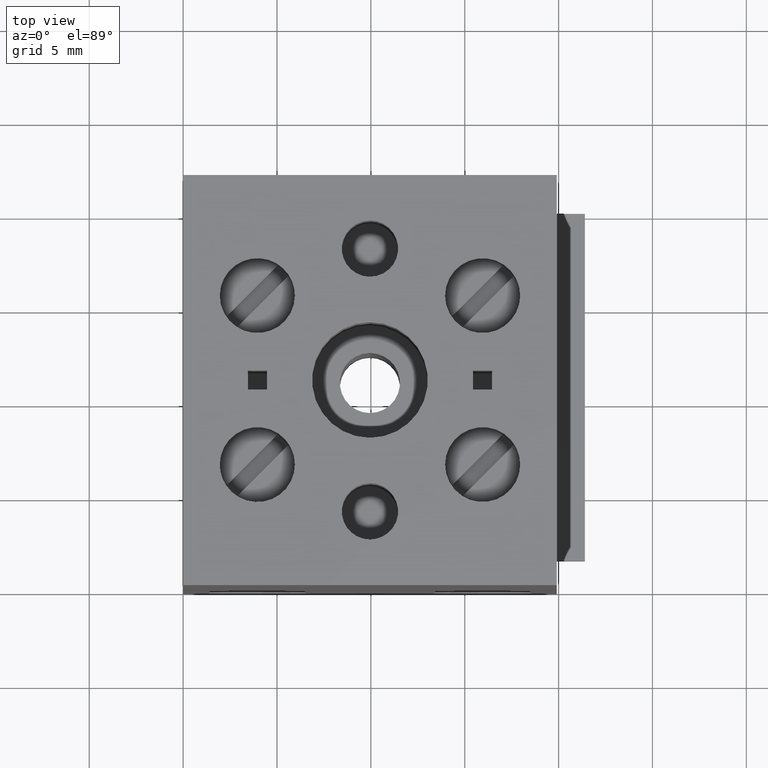
[diagram: clean part render]
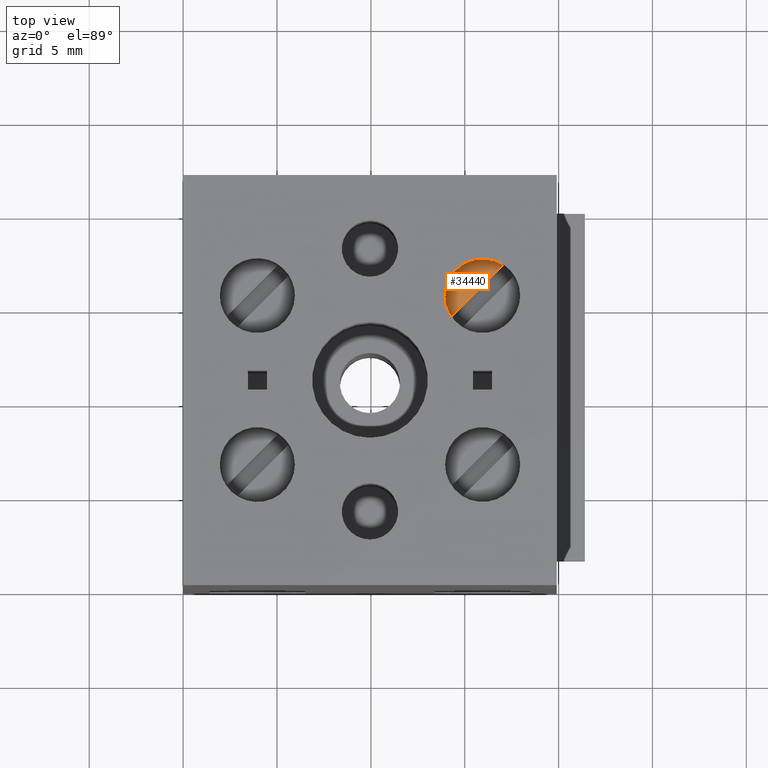
[diagram: same view with one face highlighted and labeled with its STEP entity id]
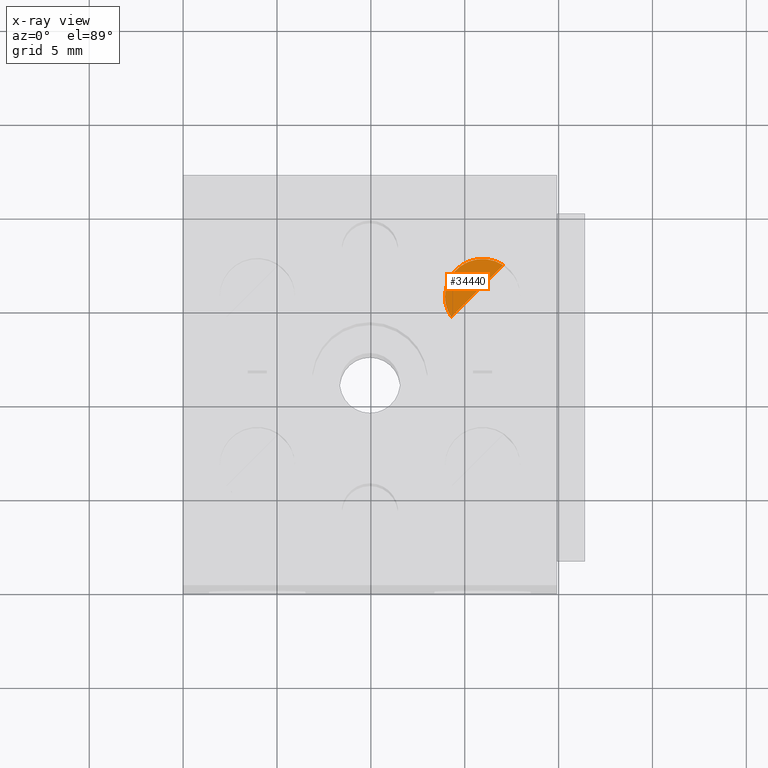
[diagram: x-ray of the same camera — body ghosted, the highlighted face saturated]
A machine part, top view. The second image highlights one B-rep face of the part: STEP entity #34440.
The next image is the same camera in x-ray: the body ghosted, the highlighted face saturated — about 0% of this face is hidden behind the body in this view.
In plain terms, the highlighted planar face has unit normal (0, 0, 1).
Its self-contained STEP definition (entity closure, byte-faithful):
#32590=CARTESIAN_POINT('',(53.904081,21.256191,14.));
#32600=VERTEX_POINT('',#32590);
#32720=CARTESIAN_POINT('',(53.904081,21.256191,16.));
#32730=DIRECTION('',(0.,-1.,0.));
#32740=DIRECTION('',(0.,0.,-1.));
#32750=AXIS2_PLACEMENT_3D('',#32720,#32730,#32740);
#32760=CIRCLE('',#32750,2.);
#33020=CARTESIAN_POINT('',(55.5725643585297,21.256191,17.1027979335806))
;
#33030=VERTEX_POINT('',#33020);
#33060=EDGE_CURVE('',#32600,#33030,#32760,.T.);
#33570=CARTESIAN_POINT('',(53.0555528625762,21.256191,16.8485281374239))
;
#33580=DIRECTION('',(0.,1.,0.));
#33590=DIRECTION('',(0.707106781186548,0.,-0.707106781186547));
#33600=AXIS2_PLACEMENT_3D('',#33570,#33580,#33590);
#33610=PLANE('',#33600);
#34180=CARTESIAN_POINT('',(52.8012830664195,21.256191,14.3315166414703))
;
#34190=VERTEX_POINT('',#34180);
#34220=CARTESIAN_POINT('',(58.4197664249492,21.256191,19.95));
#34230=DIRECTION('',(-0.707106781186547,0.,-0.707106781186548));
#34240=VECTOR('',#34230,1.);
#34250=LINE('',#34220,#34240);
#34260=EDGE_CURVE('',#33030,#34190,#34250,.T.);
#34380=ORIENTED_EDGE('',*,*,#34260,.F.);
#34390=EDGE_CURVE('',#34190,#32600,#32760,.T.);
#34400=ORIENTED_EDGE('',*,*,#34390,.F.);
#34410=ORIENTED_EDGE('',*,*,#33060,.F.);
#34420=EDGE_LOOP('',(#34410,#34400,#34380));
#34430=FACE_OUTER_BOUND('',#34420,.T.);
#34440=ADVANCED_FACE('',(#34430),#33610,.T.);